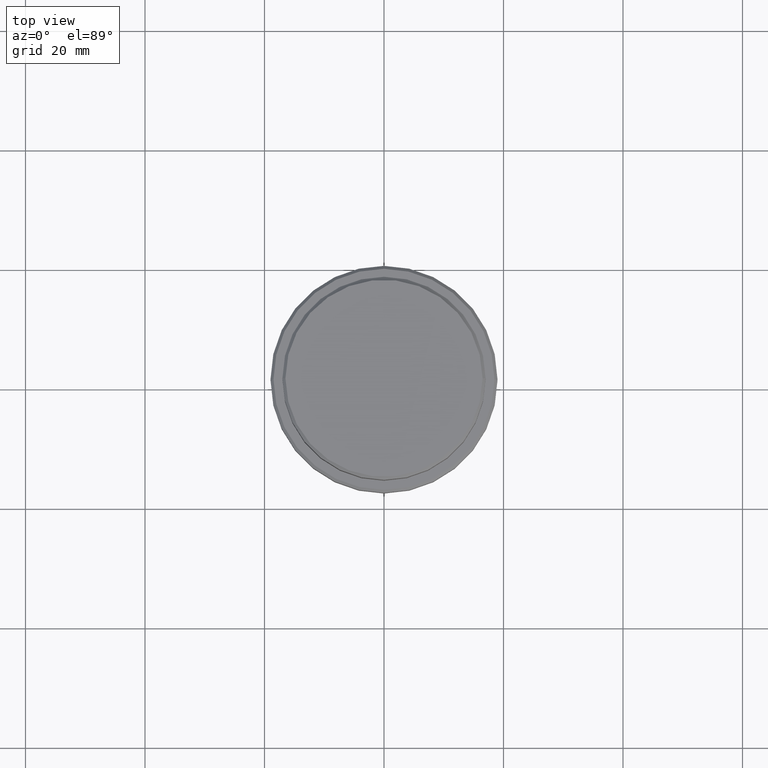
[diagram: clean part render]
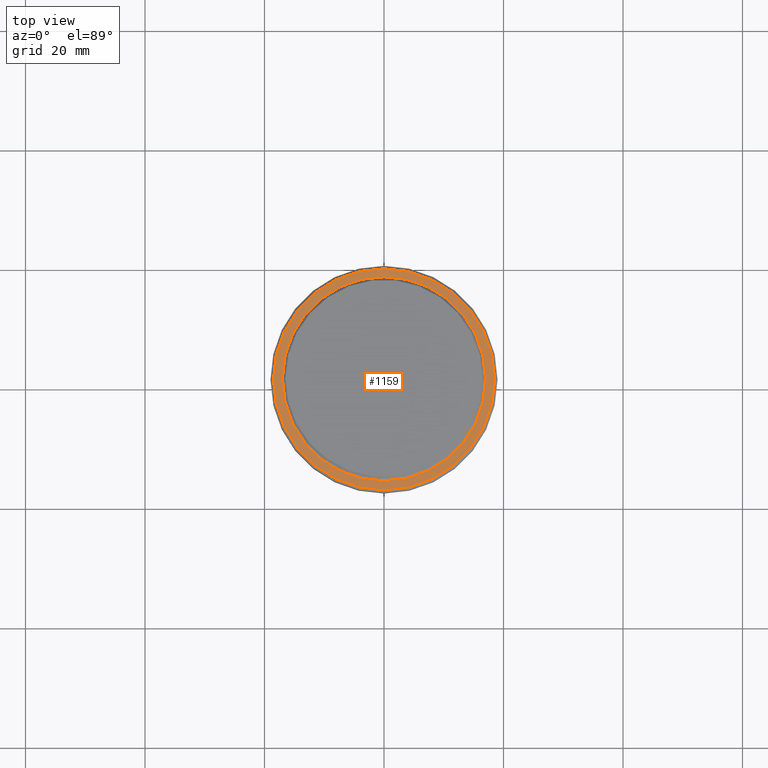
[diagram: same view with one face highlighted and labeled with its STEP entity id]
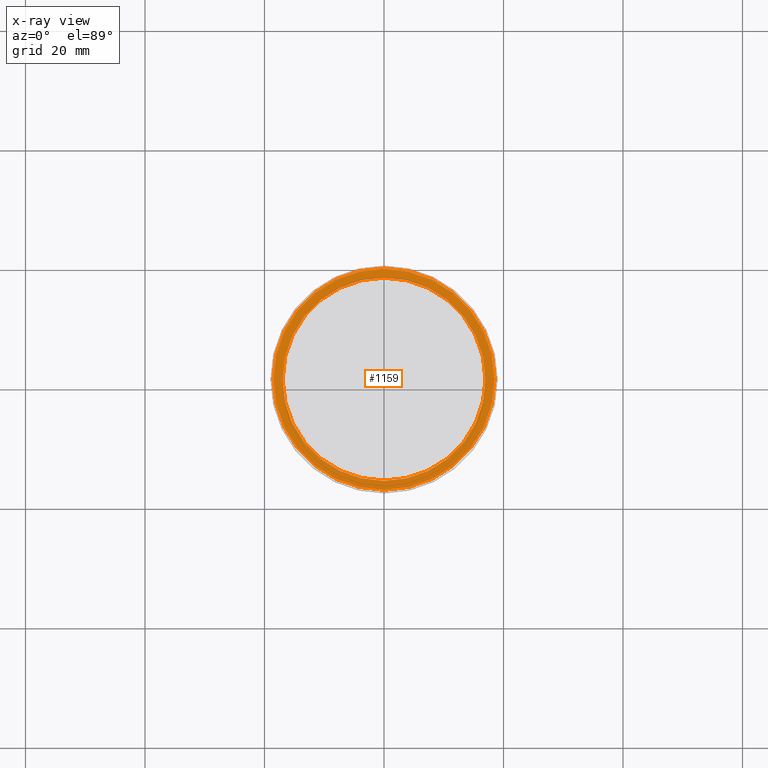
[diagram: x-ray of the same camera — body ghosted, the highlighted face saturated]
A machine part, top view. The second image highlights one B-rep face of the part: STEP entity #1159.
The next image is the same camera in x-ray: the body ghosted, the highlighted face saturated — about 0% of this face is hidden behind the body in this view.
In plain terms, the highlighted planar face has unit normal (0, -0, 1).
Its self-contained STEP definition (entity closure, byte-faithful):
#50 = DIRECTION ( 'NONE',  ( 1.000000000000000000, 0.000000000000000000, 0.000000000000000000 ) ) ;
#92 = CARTESIAN_POINT ( 'NONE',  ( 0.000000000000000000, 0.000000000000000000, -10.00000000000000178 ) ) ;
#97 = VERTEX_POINT ( 'NONE', #354 ) ;
#129 = DIRECTION ( 'NONE',  ( 0.000000000000000000, 0.000000000000000000, -1.000000000000000000 ) ) ;
#146 = CIRCLE ( 'NONE', #950, 18.50000000000001776 ) ;
#203 = ORIENTED_EDGE ( 'NONE', *, *, #1089, .T. ) ;
#207 = CARTESIAN_POINT ( 'NONE',  ( -16.99999999999998579, 2.081899558550499096E-15, -10.00000000000000178 ) ) ;
#215 = EDGE_CURVE ( 'NONE', #97, #403, #798, .T. ) ;
#225 = DIRECTION ( 'NONE',  ( 1.000000000000000000, 0.000000000000000000, 0.000000000000000000 ) ) ;
#253 = AXIS2_PLACEMENT_3D ( 'NONE', #92, #871, #876 ) ;
#272 = EDGE_LOOP ( 'NONE', ( #523, #203 ) ) ;
#345 = DIRECTION ( 'NONE',  ( 1.000000000000000000, 0.000000000000000000, 0.000000000000000000 ) ) ;
#354 = CARTESIAN_POINT ( 'NONE',  ( 16.99999999999998579, 0.000000000000000000, -10.00000000000000178 ) ) ;
#403 = VERTEX_POINT ( 'NONE', #207 ) ;
#432 = ORIENTED_EDGE ( 'NONE', *, *, #1355, .T. ) ;
#467 = DIRECTION ( 'NONE',  ( 1.000000000000000000, 0.000000000000000000, 0.000000000000000000 ) ) ;
#523 = ORIENTED_EDGE ( 'NONE', *, *, #215, .T. ) ;
#536 = ORIENTED_EDGE ( 'NONE', *, *, #685, .T. ) ;
#540 = CIRCLE ( 'NONE', #1017, 18.50000000000001776 ) ;
#550 = DIRECTION ( 'NONE',  ( 0.000000000000000000, -0.000000000000000000, 1.000000000000000000 ) ) ;
#585 = DIRECTION ( 'NONE',  ( -0.000000000000000000, -0.000000000000000000, 1.000000000000000000 ) ) ;
#685 = EDGE_CURVE ( 'NONE', #1093, #1313, #540, .T. ) ;
#761 = CARTESIAN_POINT ( 'NONE',  ( 0.000000000000000000, 0.000000000000000000, -10.00000000000000178 ) ) ;
#771 = FACE_OUTER_BOUND ( 'NONE', #1186, .T. ) ;
#797 = CIRCLE ( 'NONE', #253, 16.99999999999998579 ) ;
#798 = CIRCLE ( 'NONE', #1360, 16.99999999999998579 ) ;
#859 = PLANE ( 'NONE',  #1158 ) ;
#871 = DIRECTION ( 'NONE',  ( 0.000000000000000000, 0.000000000000000000, -1.000000000000000000 ) ) ;
#876 = DIRECTION ( 'NONE',  ( 1.000000000000000000, 0.000000000000000000, 0.000000000000000000 ) ) ;
#950 = AXIS2_PLACEMENT_3D ( 'NONE', #1052, #585, #50 ) ;
#1017 = AXIS2_PLACEMENT_3D ( 'NONE', #1133, #1122, #225 ) ;
#1027 = CARTESIAN_POINT ( 'NONE',  ( 18.50000000000001776, 2.296212748401287578E-15, -10.00000000000000178 ) ) ;
#1052 = CARTESIAN_POINT ( 'NONE',  ( 0.000000000000000000, 0.000000000000000000, -10.00000000000000178 ) ) ;
#1089 = EDGE_CURVE ( 'NONE', #403, #97, #797, .T. ) ;
#1093 = VERTEX_POINT ( 'NONE', #1217 ) ;
#1116 = CARTESIAN_POINT ( 'NONE',  ( 0.000000000000000000, 16.49999999999998579, -10.00000000000000178 ) ) ;
#1122 = DIRECTION ( 'NONE',  ( -0.000000000000000000, -0.000000000000000000, 1.000000000000000000 ) ) ;
#1133 = CARTESIAN_POINT ( 'NONE',  ( 0.000000000000000000, 0.000000000000000000, -10.00000000000000178 ) ) ;
#1158 = AXIS2_PLACEMENT_3D ( 'NONE', #1116, #550, #345 ) ;
#1159 = ADVANCED_FACE ( 'NONE', ( #771, #1323 ), #859, .T. ) ;
#1186 = EDGE_LOOP ( 'NONE', ( #536, #432 ) ) ;
#1217 = CARTESIAN_POINT ( 'NONE',  ( -18.50000000000001776, 0.000000000000000000, -10.00000000000000178 ) ) ;
#1313 = VERTEX_POINT ( 'NONE', #1027 ) ;
#1323 = FACE_BOUND ( 'NONE', #272, .T. ) ;
#1355 = EDGE_CURVE ( 'NONE', #1313, #1093, #146, .T. ) ;
#1360 = AXIS2_PLACEMENT_3D ( 'NONE', #761, #129, #467 ) ;